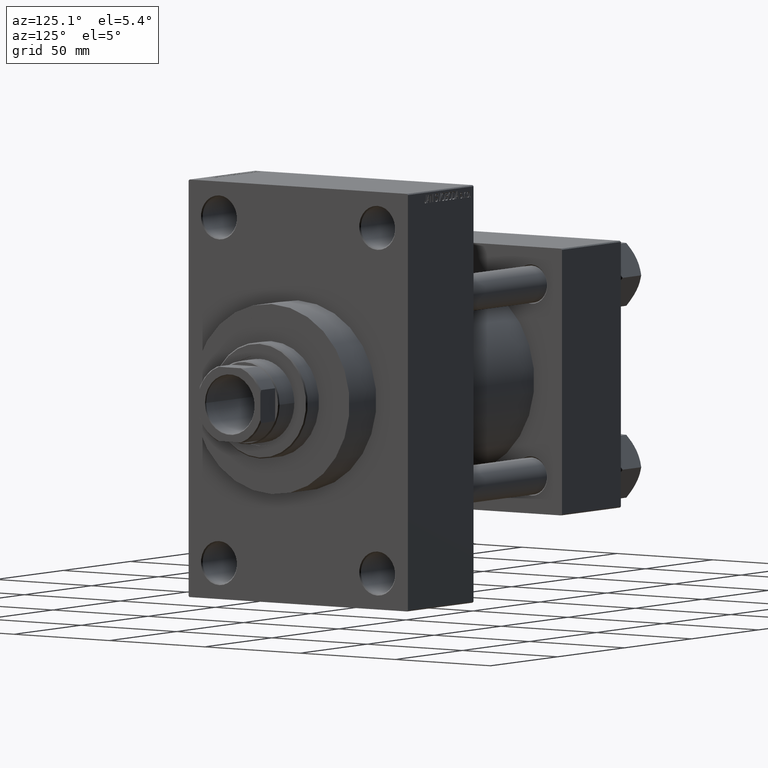
[diagram: clean part render]
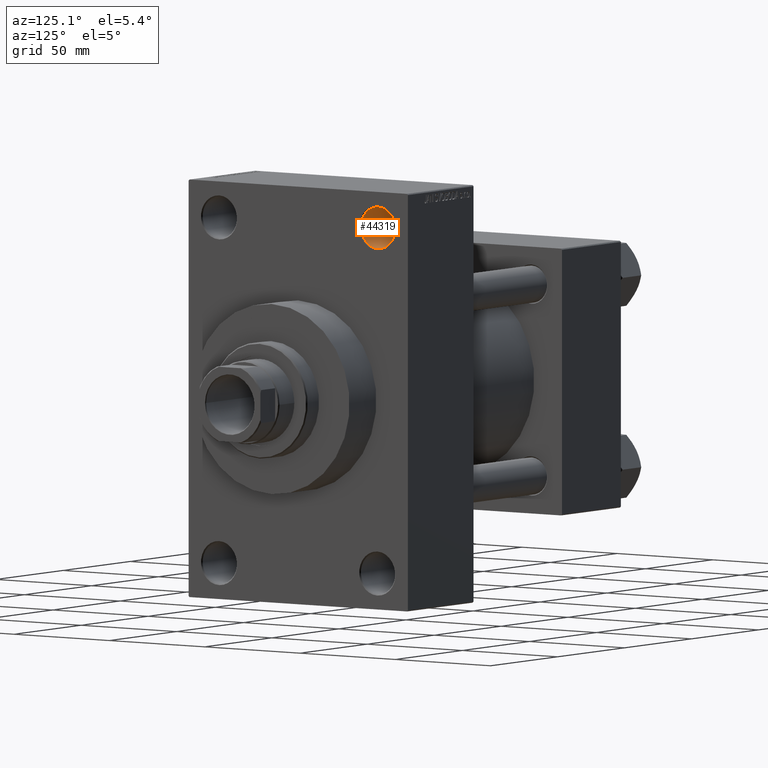
[diagram: same view with one face highlighted and labeled with its STEP entity id]
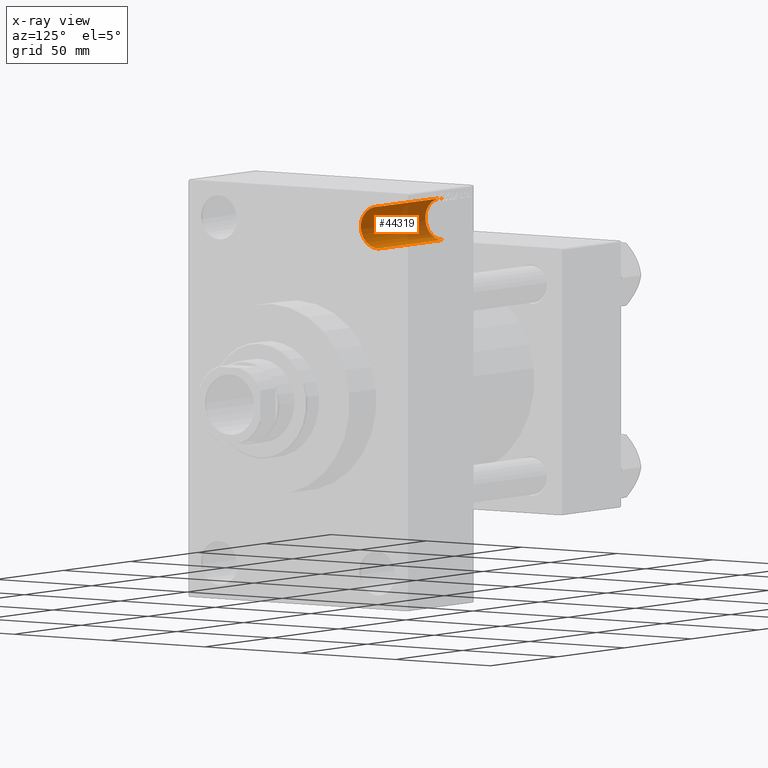
[diagram: x-ray of the same camera — body ghosted, the highlighted face saturated]
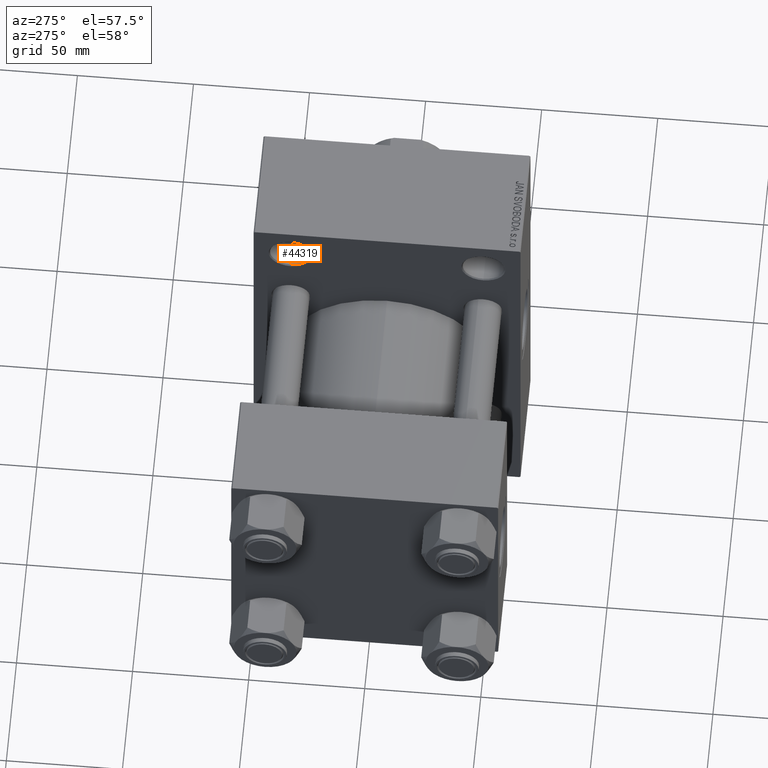
[diagram: same view with one face highlighted and labeled with its STEP entity id]
A machine part, auxiliary view. The second image highlights one B-rep face of the part: STEP entity #44319.
The next image is the same camera in x-ray: the body ghosted, the highlighted face saturated — about 34% of this face is hidden behind the body in this view.
A second angle (auxiliary view) of the same face is appended — the face is thin or edge-on in the first view.
In plain terms, the highlighted cylindrical surface (edge-blend (fillet) strip) has radius 9 mm, axis along (1, 0, 0).
Its self-contained STEP definition (entity closure, byte-faithful):
#1119 = EDGE_CURVE ( 'NONE', #24653, #29659, #3555, .T. ) ;
#1906 = DIRECTION ( 'NONE',  ( 0.000000000000000000, 0.000000000000000000, -1.000000000000000000 ) ) ;
#3555 = CIRCLE ( 'NONE', #35127, 8.999999999999994671 ) ;
#3674 = DIRECTION ( 'NONE',  ( -1.000000000000000000, -0.000000000000000000, -0.000000000000000000 ) ) ;
#5281 = DIRECTION ( 'NONE',  ( 1.000000000000000000, -0.000000000000000000, -0.000000000000000000 ) ) ;
#6229 = VECTOR ( 'NONE', #21799, 1000.000000000000000 ) ;
#6350 = DIRECTION ( 'NONE',  ( 1.000000000000000000, 0.000000000000000000, 0.000000000000000000 ) ) ;
#7508 = CARTESIAN_POINT ( 'NONE',  ( 110.5000000000000426, 41.50000000000000711, 83.50000000000000000 ) ) ;
#9388 = CARTESIAN_POINT ( 'NONE',  ( 84.54415587728431092, 41.50000000000000711, 74.50000000000001421 ) ) ;
#10067 = CARTESIAN_POINT ( 'NONE',  ( 158.4999999999999716, 41.50000000000000711, 83.50000000000000000 ) ) ;
#11237 = CARTESIAN_POINT ( 'NONE',  ( 84.54415587728431092, 41.50000000000000711, 65.50000000000001421 ) ) ;
#11678 = VECTOR ( 'NONE', #25945, 1000.000000000000000 ) ;
#12527 = FACE_OUTER_BOUND ( 'NONE', #42341, .T. ) ;
#16806 = EDGE_CURVE ( 'NONE', #17713, #29659, #44265, .T. ) ;
#17663 = AXIS2_PLACEMENT_3D ( 'NONE', #21783, #3674, #25857 ) ;
#17713 = VERTEX_POINT ( 'NONE', #29155 ) ;
#17778 = CIRCLE ( 'NONE', #17663, 8.999999999999994671 ) ;
#17933 = ORIENTED_EDGE ( 'NONE', *, *, #38183, .T. ) ;
#18406 = ORIENTED_EDGE ( 'NONE', *, *, #16806, .F. ) ;
#21068 = DIRECTION ( 'NONE',  ( 0.000000000000000000, 0.000000000000000000, 1.000000000000000000 ) ) ;
#21783 = CARTESIAN_POINT ( 'NONE',  ( 110.5000000000000426, 41.50000000000000711, 74.50000000000001421 ) ) ;
#21799 = DIRECTION ( 'NONE',  ( 1.000000000000000000, -0.000000000000000000, -0.000000000000000000 ) ) ;
#22372 = CARTESIAN_POINT ( 'NONE',  ( 158.4999999999999716, 41.50000000000000711, 65.50000000000001421 ) ) ;
#22725 = CARTESIAN_POINT ( 'NONE',  ( 84.54415587728431092, 41.50000000000000711, 83.50000000000000000 ) ) ;
#24653 = VERTEX_POINT ( 'NONE', #10067 ) ;
#25857 = DIRECTION ( 'NONE',  ( 0.000000000000000000, 0.000000000000000000, 1.000000000000000000 ) ) ;
#25945 = DIRECTION ( 'NONE',  ( 1.000000000000000000, -0.000000000000000000, -0.000000000000000000 ) ) ;
#29155 = CARTESIAN_POINT ( 'NONE',  ( 110.5000000000000426, 41.50000000000000711, 65.50000000000001421 ) ) ;
#29659 = VERTEX_POINT ( 'NONE', #22372 ) ;
#30167 = ORIENTED_EDGE ( 'NONE', *, *, #33928, .T. ) ;
#32617 = AXIS2_PLACEMENT_3D ( 'NONE', #9388, #5281, #1906 ) ;
#33928 = EDGE_CURVE ( 'NONE', #17713, #46265, #17778, .T. ) ;
#35127 = AXIS2_PLACEMENT_3D ( 'NONE', #43246, #6350, #21068 ) ;
#36946 = ORIENTED_EDGE ( 'NONE', *, *, #1119, .T. ) ;
#38183 = EDGE_CURVE ( 'NONE', #46265, #24653, #40576, .T. ) ;
#40576 = LINE ( 'NONE', #22725, #6229 ) ;
#42164 = CYLINDRICAL_SURFACE ( 'NONE', #32617, 8.999999999999994671 ) ;
#42341 = EDGE_LOOP ( 'NONE', ( #30167, #17933, #36946, #18406 ) ) ;
#43246 = CARTESIAN_POINT ( 'NONE',  ( 158.4999999999999716, 41.50000000000000711, 74.50000000000001421 ) ) ;
#44265 = LINE ( 'NONE', #11237, #11678 ) ;
#44319 = ADVANCED_FACE ( 'NONE', ( #12527 ), #42164, .F. ) ;
#46265 = VERTEX_POINT ( 'NONE', #7508 ) ;